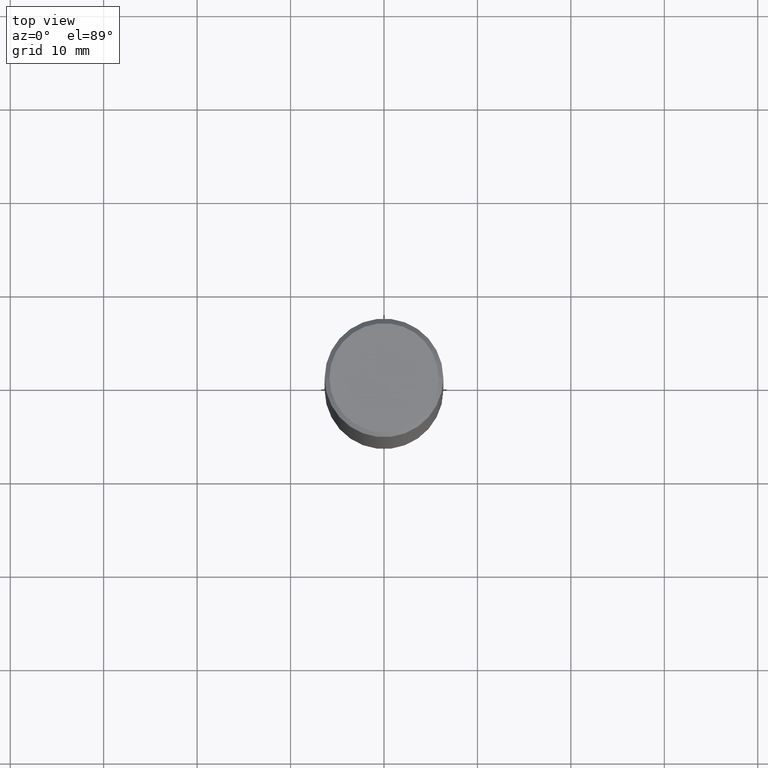
[diagram: clean part render]
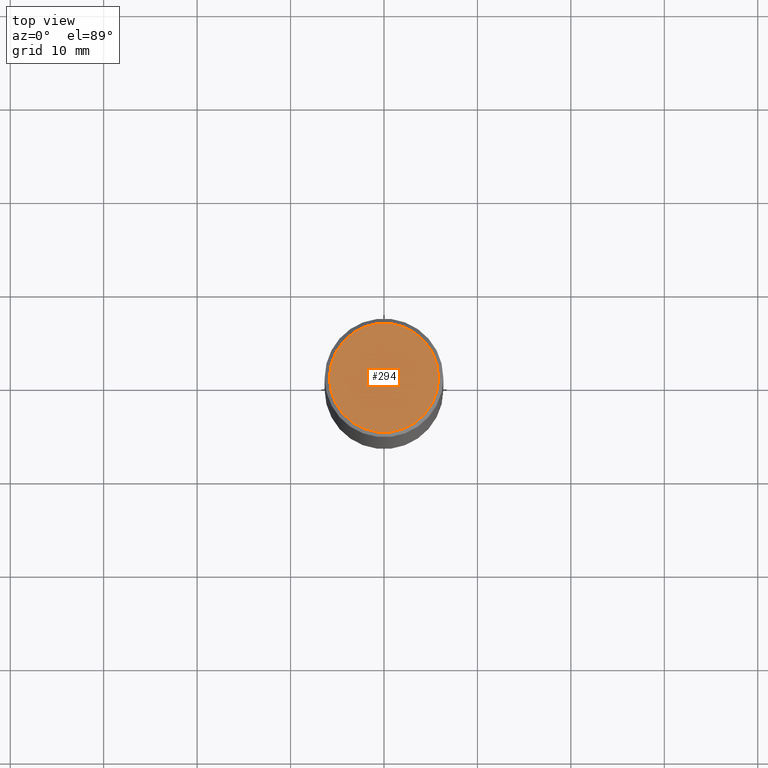
[diagram: same view with one face highlighted and labeled with its STEP entity id]
A machine part, top view. The second image highlights one B-rep face of the part: STEP entity #294.
In plain terms, the highlighted planar face has unit normal (0, -0, -1).
Its self-contained STEP definition (entity closure, byte-faithful):
#8 = CIRCLE ( 'NONE', #21, 0.2299999999999998712 ) ;
#21 = AXIS2_PLACEMENT_3D ( 'NONE', #137, #81, #139 ) ;
#45 = CARTESIAN_POINT ( 'NONE',  ( 0.2299999999999998712, -1.681434332853598419E-15, 1.237868622129234180E-16 ) ) ;
#71 = AXIS2_PLACEMENT_3D ( 'NONE', #145, #146, #143 ) ;
#81 = DIRECTION ( 'NONE',  ( -2.445468806185136597E-29, 3.491481338843145583E-15, 1.000000000000000000 ) ) ;
#88 = EDGE_CURVE ( 'NONE', #126, #353, #391, .T. ) ;
#100 = ORIENTED_EDGE ( 'NONE', *, *, #88, .T. ) ;
#126 = VERTEX_POINT ( 'NONE', #45 ) ;
#137 = CARTESIAN_POINT ( 'NONE',  ( -3.027169101572137302E-45, 4.321995194103296744E-31, 1.237868622129119302E-16 ) ) ;
#139 = DIRECTION ( 'NONE',  ( 1.000000000000000000, -6.982962677686266711E-15, 4.879110437680778240E-29 ) ) ;
#143 = DIRECTION ( 'NONE',  ( -1.000000000000000000, 6.982962677686265922E-15, -4.876176775795935793E-29 ) ) ;
#145 = CARTESIAN_POINT ( 'NONE',  ( 1.606081415867840278E-15, 0.2299999999999998712, -7.411472768274671077E-16 ) ) ;
#146 = DIRECTION ( 'NONE',  ( 2.438088387897960049E-29, -3.491481338843145188E-15, -1.000000000000000000 ) ) ;
#149 = EDGE_CURVE ( 'NONE', #353, #126, #8, .T. ) ;
#236 = DIRECTION ( 'NONE',  ( -2.445468806185136597E-29, 3.491481338843145583E-15, 1.000000000000000000 ) ) ;
#268 = DIRECTION ( 'NONE',  ( 1.000000000000000000, -6.982962677686266711E-15, 4.879110437680778240E-29 ) ) ;
#274 = PLANE ( 'NONE',  #71 ) ;
#291 = EDGE_LOOP ( 'NONE', ( #317, #100 ) ) ;
#294 = ADVANCED_FACE ( 'NONE', ( #409 ), #274, .F. ) ;
#300 = CARTESIAN_POINT ( 'NONE',  ( -3.027169101572137302E-45, 4.321995194103296744E-31, 1.237868622129119302E-16 ) ) ;
#317 = ORIENTED_EDGE ( 'NONE', *, *, #149, .T. ) ;
#353 = VERTEX_POINT ( 'NONE', #403 ) ;
#391 = CIRCLE ( 'NONE', #406, 0.2299999999999998712 ) ;
#403 = CARTESIAN_POINT ( 'NONE',  ( -0.2299999999999998712, 1.640996229256272125E-15, 1.237868622129005656E-16 ) ) ;
#406 = AXIS2_PLACEMENT_3D ( 'NONE', #300, #236, #268 ) ;
#409 = FACE_OUTER_BOUND ( 'NONE', #291, .T. ) ;